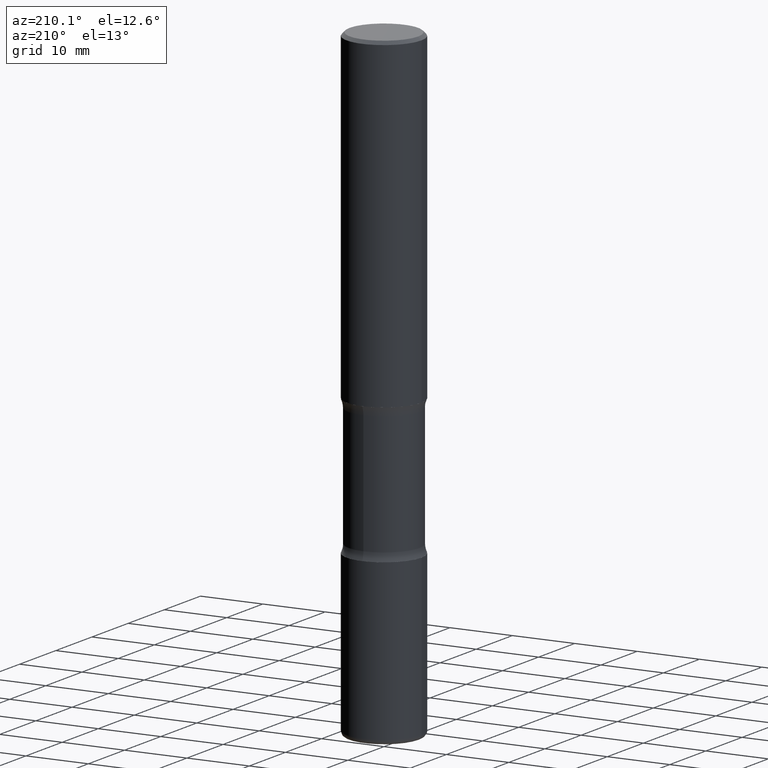
[diagram: clean part render]
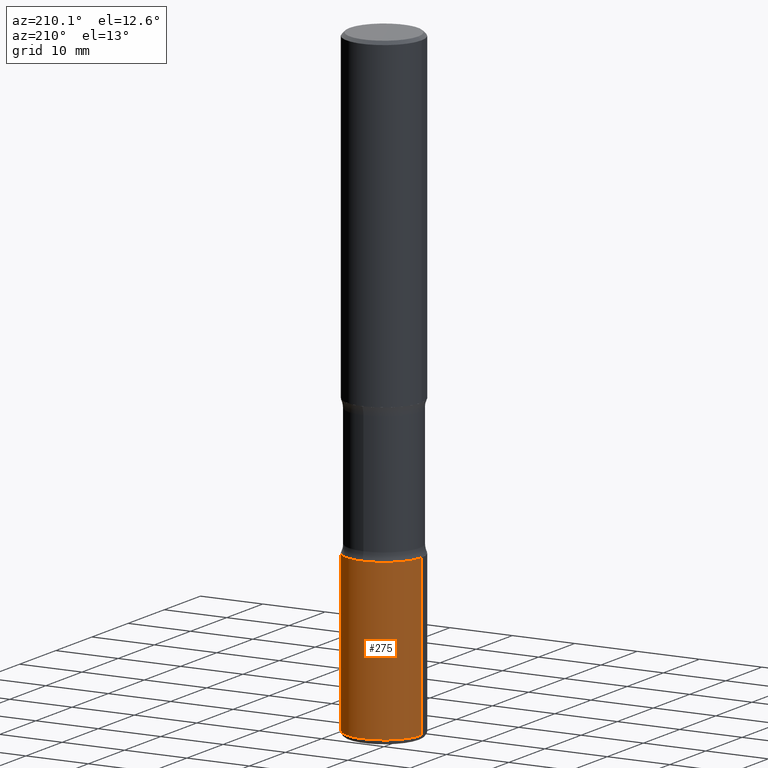
[diagram: same view with one face highlighted and labeled with its STEP entity id]
A machine part, auxiliary view. The second image highlights one B-rep face of the part: STEP entity #275.
In plain terms, the highlighted cylindrical surface (partial cylindrical patch) has radius 5.9995 mm, axis along (-0, 0, 1).
Its self-contained STEP definition (entity closure, byte-faithful):
#19 = CARTESIAN_POINT ( 'NONE',  ( 7.124628819939777829E-29, -1.017208173258562247E-14, -2.913400000000000212 ) ) ;
#22 = DIRECTION ( 'NONE',  ( -2.445468806185136597E-29, 3.491481338843145583E-15, 1.000000000000000000 ) ) ;
#24 = DIRECTION ( 'NONE',  ( -2.445468806185136877E-29, 3.491481338843145188E-15, 1.000000000000000000 ) ) ;
#31 = LINE ( 'NONE', #61, #199 ) ;
#61 = CARTESIAN_POINT ( 'NONE',  ( 0.2362000000000002153, -1.649375784469497708E-15, 1.151752954443001069E-29 ) ) ;
#78 = ORIENTED_EDGE ( 'NONE', *, *, #279, .F. ) ;
#96 = CARTESIAN_POINT ( 'NONE',  ( -0.2362000000000000766, -1.196291564899481365E-14, -3.907000000000000028 ) ) ;
#106 = FACE_OUTER_BOUND ( 'NONE', #298, .T. ) ;
#112 = CARTESIAN_POINT ( 'NONE',  ( 0.2362000000000000766, -1.529059337532966657E-14, -3.907000000000000028 ) ) ;
#143 = DIRECTION ( 'NONE',  ( -2.445468806185136597E-29, 3.491481338843145583E-15, 1.000000000000000000 ) ) ;
#148 = EDGE_CURVE ( 'NONE', #164, #494, #31, .T. ) ;
#151 = DIRECTION ( 'NONE',  ( 1.000000000000000000, -6.982962677686266711E-15, 4.876176775795935793E-29 ) ) ;
#158 = CARTESIAN_POINT ( 'NONE',  ( -0.2362000000000001321, -1.022834771985753829E-14, -2.913400000000000212 ) ) ;
#164 = VERTEX_POINT ( 'NONE', #112 ) ;
#177 = EDGE_CURVE ( 'NONE', #560, #555, #302, .T. ) ;
#191 = AXIS2_PLACEMENT_3D ( 'NONE', #456, #22, #362 ) ;
#199 = VECTOR ( 'NONE', #24, 39.37007874015748143 ) ;
#213 = VECTOR ( 'NONE', #368, 39.37007874015748143 ) ;
#215 = CIRCLE ( 'NONE', #191, 0.2362000000000002431 ) ;
#218 = ORIENTED_EDGE ( 'NONE', *, *, #177, .T. ) ;
#245 = EDGE_CURVE ( 'NONE', #164, #560, #215, .T. ) ;
#275 = ADVANCED_FACE ( 'NONE', ( #106 ), #355, .T. ) ;
#276 = CIRCLE ( 'NONE', #382, 0.2362000000000001321 ) ;
#279 = EDGE_CURVE ( 'NONE', #494, #555, #276, .T. ) ;
#280 = CARTESIAN_POINT ( 'NONE',  ( 0.000000000000000000, 0.000000000000000000, 0.000000000000000000 ) ) ;
#298 = EDGE_LOOP ( 'NONE', ( #407, #218, #78, #438 ) ) ;
#302 = LINE ( 'NONE', #361, #213 ) ;
#312 = DIRECTION ( 'NONE',  ( 1.000000000000000000, -6.982962677686269077E-15, 0.000000000000000000 ) ) ;
#355 = CYLINDRICAL_SURFACE ( 'NONE', #422, 0.2362000000000002153 ) ;
#361 = CARTESIAN_POINT ( 'NONE',  ( -0.2362000000000002153, 1.678301941865358169E-15, -1.161852468318209878E-29 ) ) ;
#362 = DIRECTION ( 'NONE',  ( 1.000000000000000000, -6.982962677686265922E-15, 0.000000000000000000 ) ) ;
#368 = DIRECTION ( 'NONE',  ( -2.445468806185136877E-29, 3.491481338843145188E-15, 1.000000000000000000 ) ) ;
#382 = AXIS2_PLACEMENT_3D ( 'NONE', #19, #143, #312 ) ;
#407 = ORIENTED_EDGE ( 'NONE', *, *, #245, .T. ) ;
#409 = DIRECTION ( 'NONE',  ( -2.445468806185136597E-29, 3.491481338843145583E-15, 1.000000000000000000 ) ) ;
#422 = AXIS2_PLACEMENT_3D ( 'NONE', #280, #409, #151 ) ;
#438 = ORIENTED_EDGE ( 'NONE', *, *, #148, .F. ) ;
#456 = CARTESIAN_POINT ( 'NONE',  ( 9.554446625765329033E-29, -1.364121759086017004E-14, -3.907000000000000028 ) ) ;
#494 = VERTEX_POINT ( 'NONE', #537 ) ;
#537 = CARTESIAN_POINT ( 'NONE',  ( 0.2362000000000001321, -1.182145751705511899E-14, -2.913400000000000212 ) ) ;
#555 = VERTEX_POINT ( 'NONE', #158 ) ;
#560 = VERTEX_POINT ( 'NONE', #96 ) ;